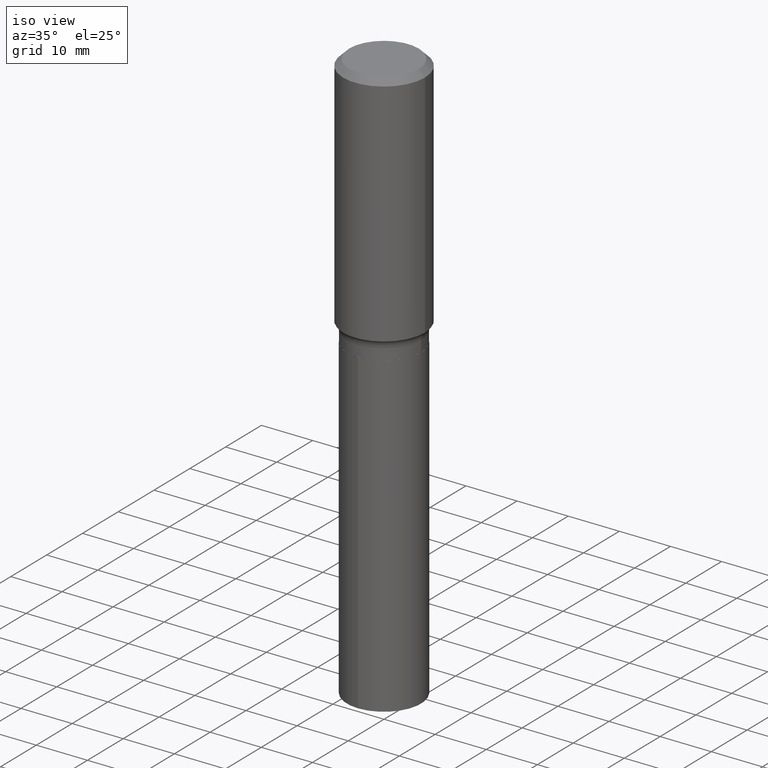
[diagram: clean part render]
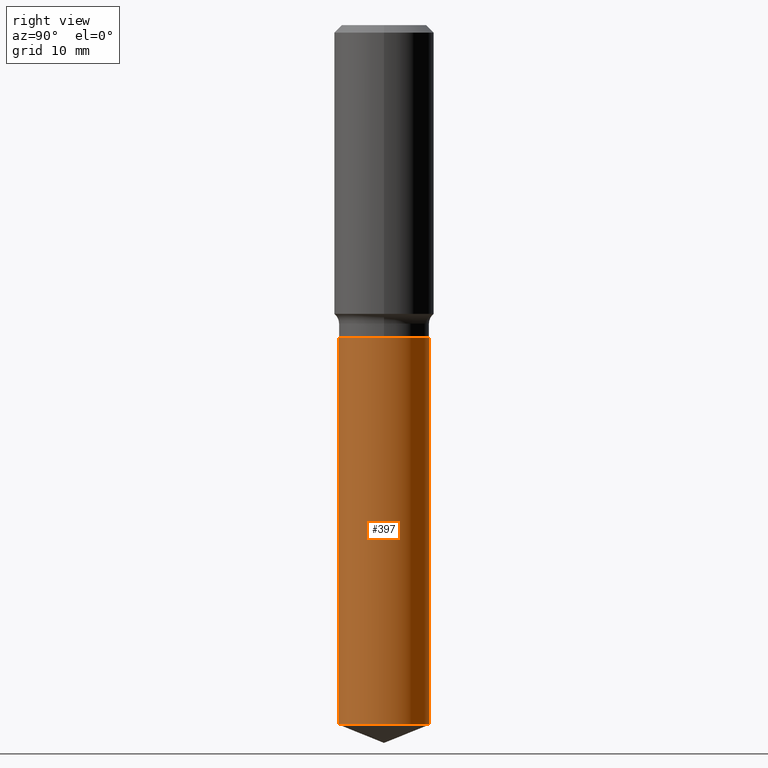
[diagram: tour spotlight — one face highlighted and labeled with its STEP entity id]
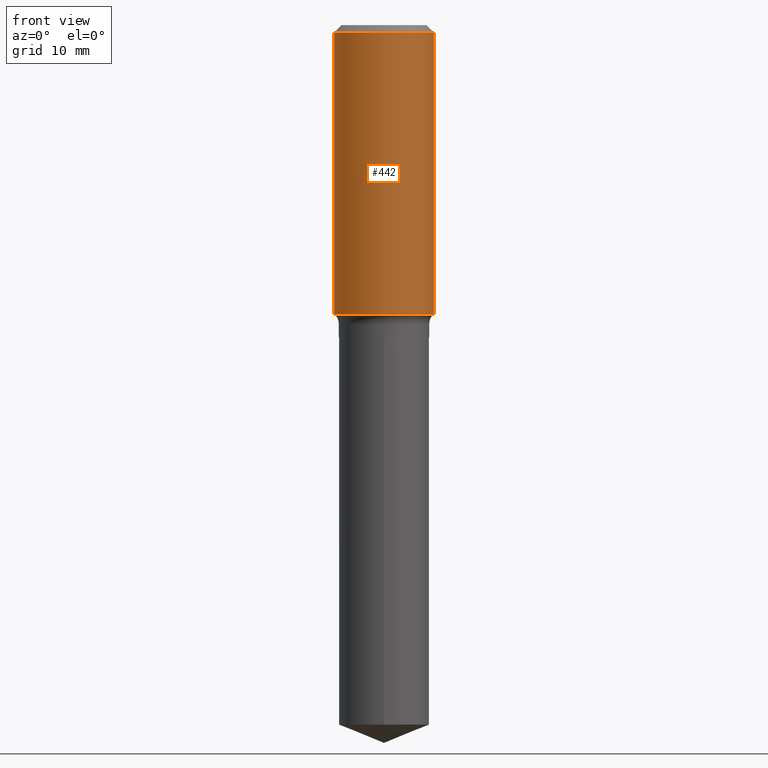
[diagram: tour spotlight — one face highlighted and labeled with its STEP entity id]
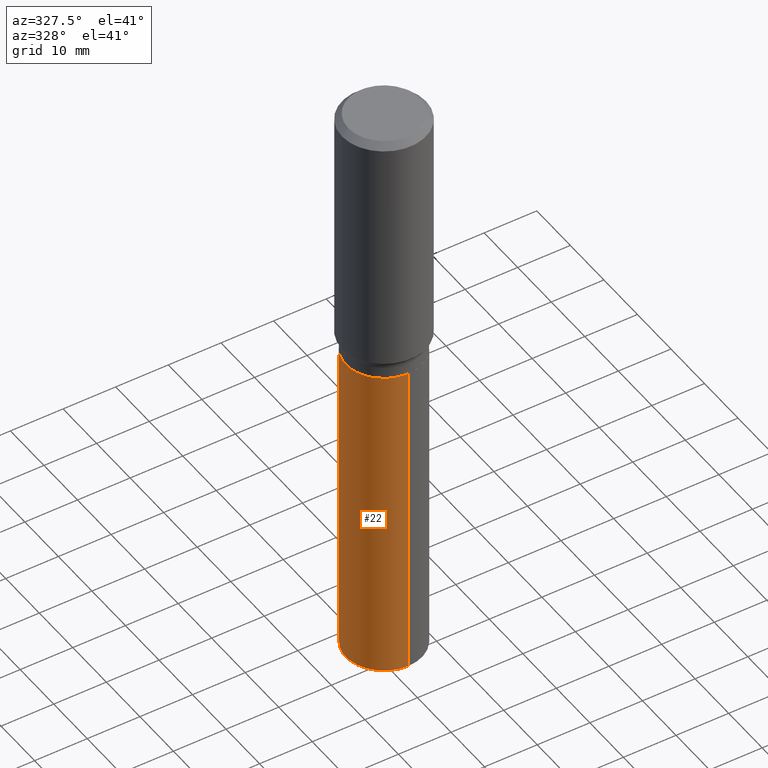
[diagram: tour spotlight — one face highlighted and labeled with its STEP entity id]
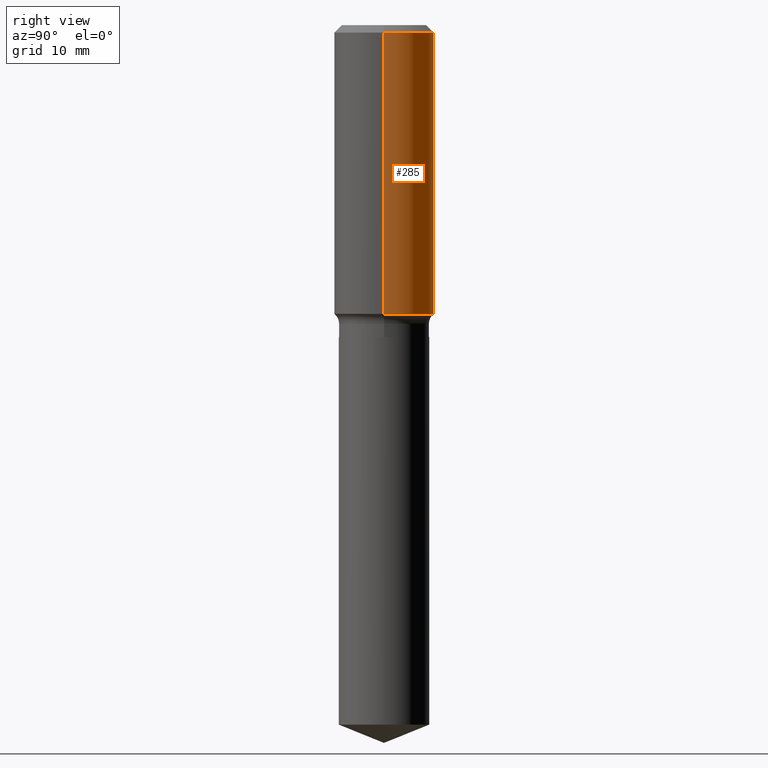
[diagram: tour spotlight — one face highlighted and labeled with its STEP entity id]
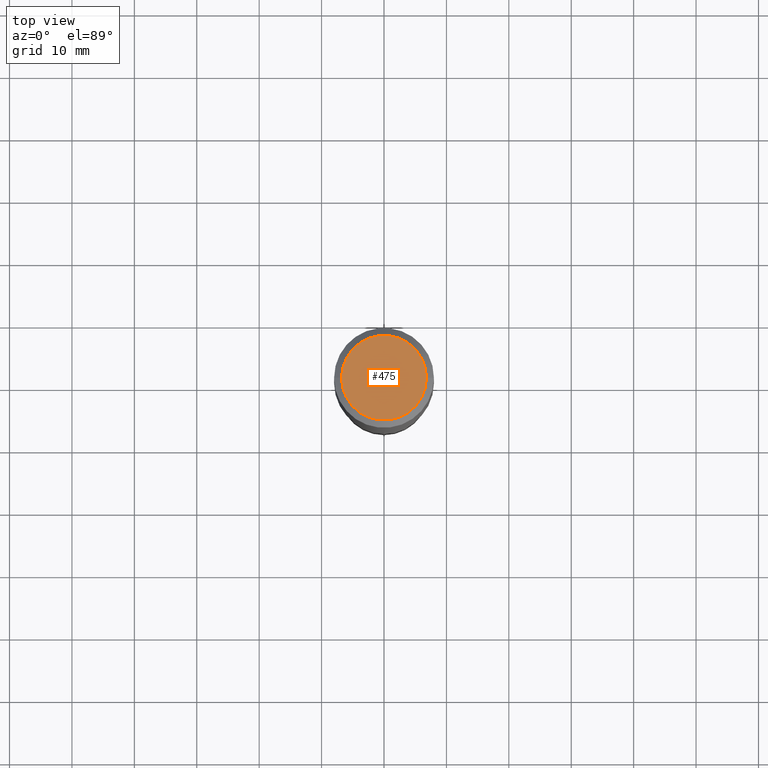
[diagram: tour spotlight — one face highlighted and labeled with its STEP entity id]
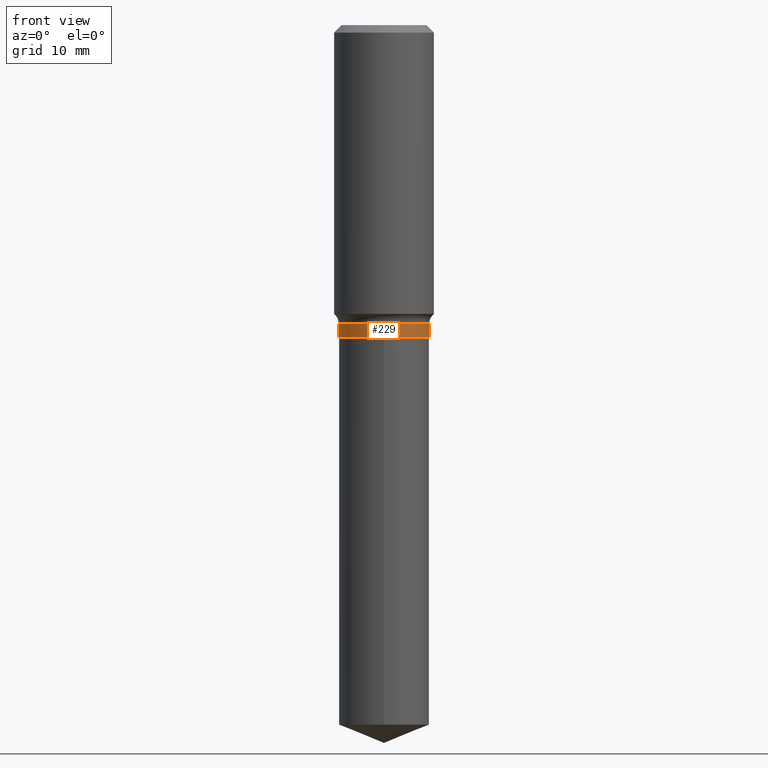
[diagram: tour spotlight — one face highlighted and labeled with its STEP entity id]
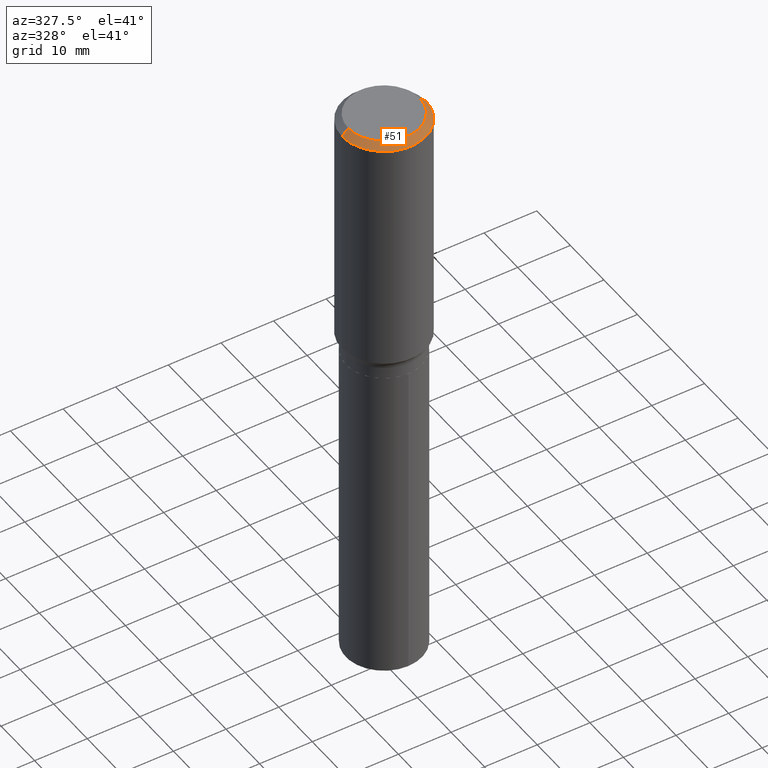
[diagram: tour spotlight — one face highlighted and labeled with its STEP entity id]
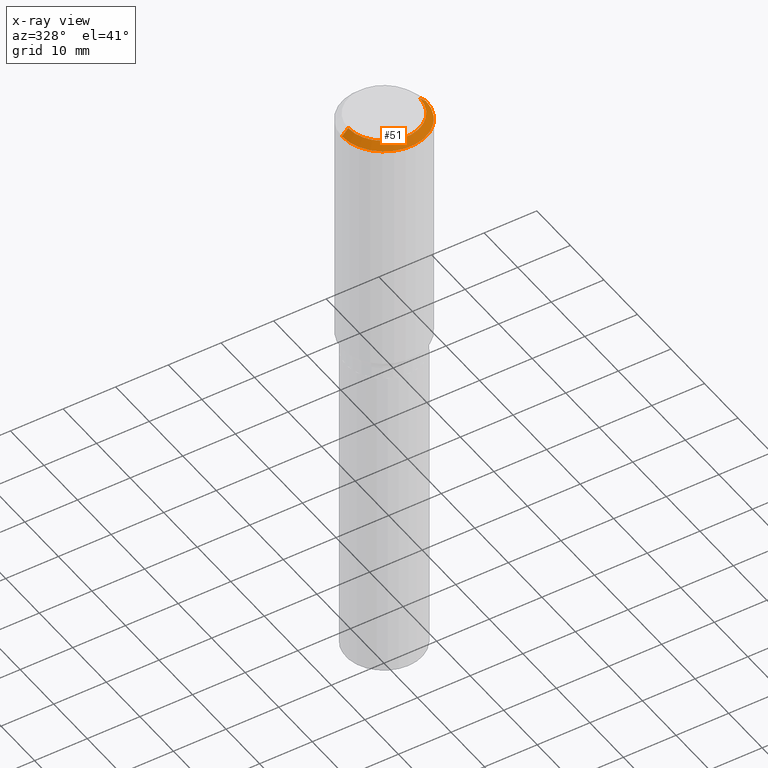
[diagram: x-ray of the same camera — body ghosted, this tour face saturated]
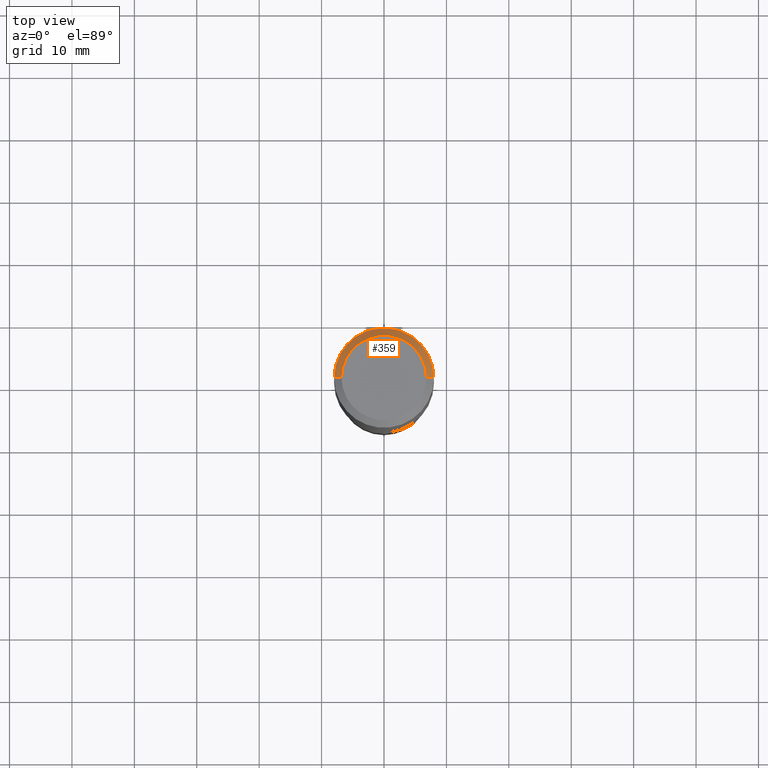
[diagram: tour spotlight — one face highlighted and labeled with its STEP entity id]
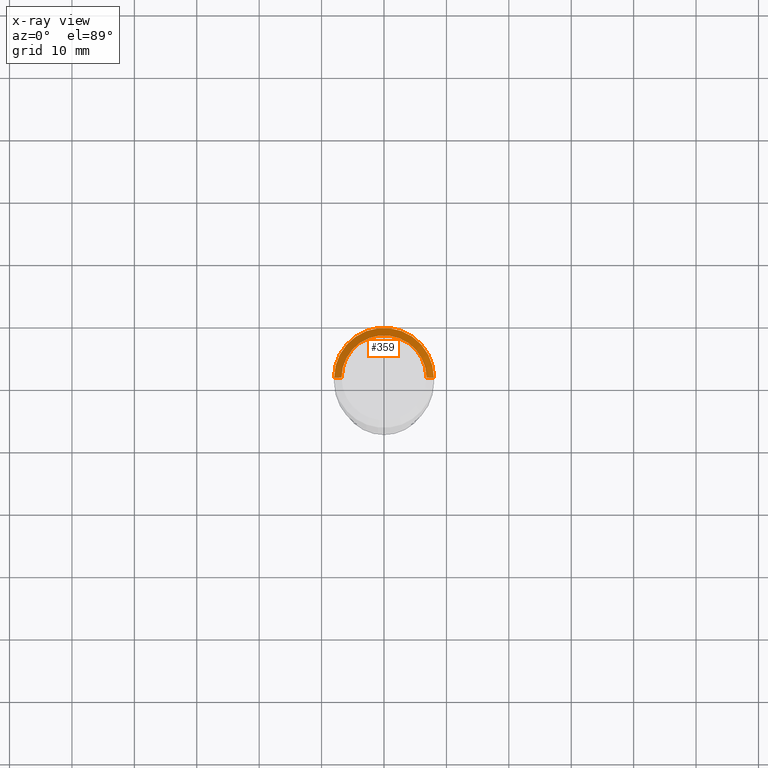
[diagram: x-ray of the same camera — body ghosted, this tour face saturated]
A machine part: a face-by-face anatomy tour. The part has 17 B-rep faces; the first image is the clean iso view, then the 8 largest visible faces are spotlighted one at a time (largest first), each with its STEP entity span.

Face 1 — right view, entity #397. In plain terms, the highlighted cylindrical surface (partial cylindrical patch) has radius 7.2504 mm, axis along (-0, 0, 1).
Definition (entity closure, byte-faithful):
#1 = LINE ( 'NONE', #32, #479 ) ;
#23 = AXIS2_PLACEMENT_3D ( 'NONE', #249, #398, #64 ) ;
#32 = CARTESIAN_POINT ( 'NONE',  ( -1.993286696345496046E-15, -0.2854500000000068094, -1.968499999999998362 ) ) ;
#39 = DIRECTION ( 'NONE',  ( -2.445526132303664263E-29, 3.491399244578613413E-15, 1.000000000000000000 ) ) ;
#43 = CIRCLE ( 'NONE', #23, 0.2854499999999999815 ) ;
#64 = DIRECTION ( 'NONE',  ( -6.982962677686265133E-15, -1.000000000000000000, 3.828128209723963046E-15 ) ) ;
#83 = DIRECTION ( 'NONE',  ( -2.445526132303664543E-29, 3.491399244578613413E-15, 1.000000000000000000 ) ) ;
#87 = AXIS2_PLACEMENT_3D ( 'NONE', #124, #121, #420 ) ;
#107 = CARTESIAN_POINT ( 'NONE',  ( -1.993286696345436093E-15, -0.2854500000000153026, -4.412270713835352964 ) ) ;
#108 = VERTEX_POINT ( 'NONE', #306 ) ;
#121 = DIRECTION ( 'NONE',  ( -2.445526132303664543E-29, 3.491399244578613413E-15, 1.000000000000000000 ) ) ;
#124 = CARTESIAN_POINT ( 'NONE',  ( 4.813905344975440153E-29, -6.872981015512730130E-15, -1.968499999999999472 ) ) ;
#141 = CARTESIAN_POINT ( 'NONE',  ( 2.028244239227312740E-15, 0.2854499999999844939, -4.412270713835355629 ) ) ;
#175 = EDGE_CURVE ( 'NONE', #228, #108, #309, .T. ) ;
#178 = LINE ( 'NONE', #247, #253 ) ;
#185 = EDGE_LOOP ( 'NONE', ( #457, #454, #412, #488 ) ) ;
#194 = FACE_OUTER_BOUND ( 'NONE', #185, .T. ) ;
#196 = CYLINDRICAL_SURFACE ( 'NONE', #372, 0.2854499999999999815 ) ;
#228 = VERTEX_POINT ( 'NONE', #399 ) ;
#247 = CARTESIAN_POINT ( 'NONE',  ( 2.028244239227253575E-15, 0.2854499999999930981, -1.968500000000000583 ) ) ;
#249 = CARTESIAN_POINT ( 'NONE',  ( 1.079021048701818205E-28, -1.540516023972082646E-14, -4.412270713835354741 ) ) ;
#253 = VECTOR ( 'NONE', #437, 39.37007874015748143 ) ;
#289 = VERTEX_POINT ( 'NONE', #107 ) ;
#306 = CARTESIAN_POINT ( 'NONE',  ( 2.028244239227313923E-15, 0.2854499999999931537, -1.968500000000000583 ) ) ;
#309 = CIRCLE ( 'NONE', #87, 0.2854499999999999815 ) ;
#323 = EDGE_CURVE ( 'NONE', #327, #108, #178, .T. ) ;
#327 = VERTEX_POINT ( 'NONE', #141 ) ;
#341 = EDGE_CURVE ( 'NONE', #289, #327, #43, .T. ) ;
#343 = CARTESIAN_POINT ( 'NONE',  ( 4.813905344975440153E-29, -6.872981015512730130E-15, -1.968499999999999472 ) ) ;
#351 = EDGE_CURVE ( 'NONE', #289, #228, #1, .T. ) ;
#372 = AXIS2_PLACEMENT_3D ( 'NONE', #343, #83, #452 ) ;
#397 = ADVANCED_FACE ( 'NONE', ( #194 ), #196, .T. ) ;
#398 = DIRECTION ( 'NONE',  ( -2.445526132303664543E-29, 3.491399244578613413E-15, 1.000000000000000000 ) ) ;
#399 = CARTESIAN_POINT ( 'NONE',  ( -1.993286696345496441E-15, -0.2854500000000068649, -1.968499999999998362 ) ) ;
#412 = ORIENTED_EDGE ( 'NONE', *, *, #175, .F. ) ;
#420 = DIRECTION ( 'NONE',  ( -6.982962677686265922E-15, -1.000000000000000000, 3.828128209723963046E-15 ) ) ;
#437 = DIRECTION ( 'NONE',  ( -2.445526132303664263E-29, 3.491399244578613413E-15, 1.000000000000000000 ) ) ;
#452 = DIRECTION ( 'NONE',  ( -6.982962677686265133E-15, -1.000000000000000000, 3.828128209723963046E-15 ) ) ;
#454 = ORIENTED_EDGE ( 'NONE', *, *, #323, .T. ) ;
#457 = ORIENTED_EDGE ( 'NONE', *, *, #341, .T. ) ;
#479 = VECTOR ( 'NONE', #39, 39.37007874015748143 ) ;
#488 = ORIENTED_EDGE ( 'NONE', *, *, #351, .F. ) ;

Face 2 — front view, entity #442. In plain terms, the highlighted cylindrical surface (partial cylindrical patch) has radius 7.9997 mm, axis along (-0, 0, 1).
Definition (entity closure, byte-faithful):
#6 = CARTESIAN_POINT ( 'NONE',  ( 1.155300600762019572E-30, -1.649463071502982046E-16, -0.04724250000000026345 ) ) ;
#10 = AXIS2_PLACEMENT_3D ( 'NONE', #37, #338, #409 ) ;
#17 = CARTESIAN_POINT ( 'NONE',  ( 0.3149500000000000632, -2.199284095337290265E-15, 1.535751875536930410E-29 ) ) ;
#30 = ORIENTED_EDGE ( 'NONE', *, *, #155, .F. ) ;
#31 = EDGE_CURVE ( 'NONE', #136, #207, #263, .T. ) ;
#37 = CARTESIAN_POINT ( 'NONE',  ( 4.455184291514019437E-29, -6.360822422099911684E-15, -1.821811948795201808 ) ) ;
#56 = AXIS2_PLACEMENT_3D ( 'NONE', #120, #149, #255 ) ;
#73 = CARTESIAN_POINT ( 'NONE',  ( 0.3149500000000001743, -8.560106517437202343E-15, -1.821811948795201808 ) ) ;
#95 = ORIENTED_EDGE ( 'NONE', *, *, #31, .F. ) ;
#103 = CIRCLE ( 'NONE', #10, 0.3149500000000001743 ) ;
#120 = CARTESIAN_POINT ( 'NONE',  ( 0.000000000000000000, 0.000000000000000000, 0.000000000000000000 ) ) ;
#136 = VERTEX_POINT ( 'NONE', #201 ) ;
#149 = DIRECTION ( 'NONE',  ( -2.445468806185136597E-29, 3.491481338843145583E-15, 1.000000000000000000 ) ) ;
#155 = EDGE_CURVE ( 'NONE', #207, #345, #334, .T. ) ;
#184 = EDGE_CURVE ( 'NONE', #136, #451, #103, .T. ) ;
#198 = DIRECTION ( 'NONE',  ( -2.445468806185136877E-29, 3.491481338843145188E-15, 1.000000000000000000 ) ) ;
#201 = CARTESIAN_POINT ( 'NONE',  ( -0.3149500000000001743, -4.122968075823474910E-15, -1.821811948795201808 ) ) ;
#204 = CARTESIAN_POINT ( 'NONE',  ( -0.3149500000000000632, 2.237854346276435985E-15, -1.549218606675782956E-29 ) ) ;
#207 = VERTEX_POINT ( 'NONE', #307 ) ;
#209 = LINE ( 'NONE', #17, #299 ) ;
#212 = CARTESIAN_POINT ( 'NONE',  ( 0.3149500000000000077, -2.364230402487588149E-15, -0.04724250000000026345 ) ) ;
#255 = DIRECTION ( 'NONE',  ( 1.000000000000000000, -6.982962677686266711E-15, 4.876176775795936353E-29 ) ) ;
#263 = LINE ( 'NONE', #204, #485 ) ;
#280 = DIRECTION ( 'NONE',  ( 1.000000000000000000, -6.982962677686266711E-15, 0.000000000000000000 ) ) ;
#297 = ORIENTED_EDGE ( 'NONE', *, *, #184, .T. ) ;
#299 = VECTOR ( 'NONE', #320, 39.37007874015748143 ) ;
#302 = EDGE_CURVE ( 'NONE', #451, #345, #209, .T. ) ;
#307 = CARTESIAN_POINT ( 'NONE',  ( -0.3149500000000000077, -1.025030018348668799E-15, -0.04724250000000026345 ) ) ;
#315 = ORIENTED_EDGE ( 'NONE', *, *, #302, .T. ) ;
#320 = DIRECTION ( 'NONE',  ( -2.445468806185136877E-29, 3.491481338843145188E-15, 1.000000000000000000 ) ) ;
#334 = CIRCLE ( 'NONE', #465, 0.3149500000000000077 ) ;
#338 = DIRECTION ( 'NONE',  ( -2.445468806185136597E-29, 3.491481338843145583E-15, 1.000000000000000000 ) ) ;
#345 = VERTEX_POINT ( 'NONE', #212 ) ;
#349 = DIRECTION ( 'NONE',  ( -2.445468806185136597E-29, 3.491481338843145583E-15, 1.000000000000000000 ) ) ;
#409 = DIRECTION ( 'NONE',  ( 1.000000000000000000, -6.982962677686265922E-15, 0.000000000000000000 ) ) ;
#442 = ADVANCED_FACE ( 'NONE', ( #456 ), #484, .T. ) ;
#451 = VERTEX_POINT ( 'NONE', #73 ) ;
#456 = FACE_OUTER_BOUND ( 'NONE', #472, .T. ) ;
#465 = AXIS2_PLACEMENT_3D ( 'NONE', #6, #349, #280 ) ;
#472 = EDGE_LOOP ( 'NONE', ( #95, #297, #315, #30 ) ) ;
#484 = CYLINDRICAL_SURFACE ( 'NONE', #56, 0.3149500000000000632 ) ;
#485 = VECTOR ( 'NONE', #198, 39.37007874015748143 ) ;

Face 3 — auxiliary view, entity #22. In plain terms, the highlighted cylindrical surface (partial cylindrical patch) has radius 7.2504 mm, axis along (-0, 0, 1).
Definition (entity closure, byte-faithful):
#1 = LINE ( 'NONE', #32, #479 ) ;
#16 = AXIS2_PLACEMENT_3D ( 'NONE', #158, #259, #226 ) ;
#22 = ADVANCED_FACE ( 'NONE', ( #40 ), #274, .T. ) ;
#32 = CARTESIAN_POINT ( 'NONE',  ( -1.993286696345496046E-15, -0.2854500000000068094, -1.968499999999998362 ) ) ;
#39 = DIRECTION ( 'NONE',  ( -2.445526132303664263E-29, 3.491399244578613413E-15, 1.000000000000000000 ) ) ;
#40 = FACE_OUTER_BOUND ( 'NONE', #82, .T. ) ;
#50 = DIRECTION ( 'NONE',  ( -2.445526132303664543E-29, 3.491399244578613413E-15, 1.000000000000000000 ) ) ;
#82 = EDGE_LOOP ( 'NONE', ( #231, #410, #364, #148 ) ) ;
#107 = CARTESIAN_POINT ( 'NONE',  ( -1.993286696345436093E-15, -0.2854500000000153026, -4.412270713835352964 ) ) ;
#108 = VERTEX_POINT ( 'NONE', #306 ) ;
#141 = CARTESIAN_POINT ( 'NONE',  ( 2.028244239227312740E-15, 0.2854499999999844939, -4.412270713835355629 ) ) ;
#148 = ORIENTED_EDGE ( 'NONE', *, *, #163, .F. ) ;
#158 = CARTESIAN_POINT ( 'NONE',  ( 4.813905344975440153E-29, -6.872981015512730130E-15, -1.968499999999999472 ) ) ;
#163 = EDGE_CURVE ( 'NONE', #108, #228, #395, .T. ) ;
#178 = LINE ( 'NONE', #247, #253 ) ;
#222 = DIRECTION ( 'NONE',  ( -6.982962677686265133E-15, -1.000000000000000000, 3.828128209723963046E-15 ) ) ;
#226 = DIRECTION ( 'NONE',  ( -6.982962677686265922E-15, -1.000000000000000000, 3.828128209723963046E-15 ) ) ;
#228 = VERTEX_POINT ( 'NONE', #399 ) ;
#231 = ORIENTED_EDGE ( 'NONE', *, *, #323, .F. ) ;
#247 = CARTESIAN_POINT ( 'NONE',  ( 2.028244239227253575E-15, 0.2854499999999930981, -1.968500000000000583 ) ) ;
#253 = VECTOR ( 'NONE', #437, 39.37007874015748143 ) ;
#259 = DIRECTION ( 'NONE',  ( -2.445526132303664543E-29, 3.491399244578613413E-15, 1.000000000000000000 ) ) ;
#271 = DIRECTION ( 'NONE',  ( -6.982962677686265133E-15, -1.000000000000000000, 3.828128209723963046E-15 ) ) ;
#274 = CYLINDRICAL_SURFACE ( 'NONE', #438, 0.2854499999999999815 ) ;
#289 = VERTEX_POINT ( 'NONE', #107 ) ;
#303 = DIRECTION ( 'NONE',  ( -2.445526132303664543E-29, 3.491399244578613413E-15, 1.000000000000000000 ) ) ;
#306 = CARTESIAN_POINT ( 'NONE',  ( 2.028244239227313923E-15, 0.2854499999999931537, -1.968500000000000583 ) ) ;
#313 = CARTESIAN_POINT ( 'NONE',  ( 4.813905344975440153E-29, -6.872981015512730130E-15, -1.968499999999999472 ) ) ;
#323 = EDGE_CURVE ( 'NONE', #327, #108, #178, .T. ) ;
#327 = VERTEX_POINT ( 'NONE', #141 ) ;
#351 = EDGE_CURVE ( 'NONE', #289, #228, #1, .T. ) ;
#362 = EDGE_CURVE ( 'NONE', #327, #289, #403, .T. ) ;
#364 = ORIENTED_EDGE ( 'NONE', *, *, #351, .T. ) ;
#395 = CIRCLE ( 'NONE', #16, 0.2854499999999999815 ) ;
#399 = CARTESIAN_POINT ( 'NONE',  ( -1.993286696345496441E-15, -0.2854500000000068649, -1.968499999999998362 ) ) ;
#403 = CIRCLE ( 'NONE', #434, 0.2854499999999999815 ) ;
#410 = ORIENTED_EDGE ( 'NONE', *, *, #362, .T. ) ;
#411 = CARTESIAN_POINT ( 'NONE',  ( 1.079021048701818205E-28, -1.540516023972082646E-14, -4.412270713835354741 ) ) ;
#434 = AXIS2_PLACEMENT_3D ( 'NONE', #411, #303, #222 ) ;
#437 = DIRECTION ( 'NONE',  ( -2.445526132303664263E-29, 3.491399244578613413E-15, 1.000000000000000000 ) ) ;
#438 = AXIS2_PLACEMENT_3D ( 'NONE', #313, #50, #271 ) ;
#479 = VECTOR ( 'NONE', #39, 39.37007874015748143 ) ;

Face 4 — right view, entity #285. In plain terms, the highlighted cylindrical surface (partial cylindrical patch) has radius 7.9997 mm, axis along (-0, 0, 1).
Definition (entity closure, byte-faithful):
#3 = CARTESIAN_POINT ( 'NONE',  ( 4.455184291514019437E-29, -6.360822422099911684E-15, -1.821811948795201808 ) ) ;
#17 = CARTESIAN_POINT ( 'NONE',  ( 0.3149500000000000632, -2.199284095337290265E-15, 1.535751875536930410E-29 ) ) ;
#26 = DIRECTION ( 'NONE',  ( -2.445468806185136597E-29, 3.491481338843145583E-15, 1.000000000000000000 ) ) ;
#31 = EDGE_CURVE ( 'NONE', #136, #207, #263, .T. ) ;
#47 = DIRECTION ( 'NONE',  ( 1.000000000000000000, -6.982962677686265922E-15, 0.000000000000000000 ) ) ;
#61 = CIRCLE ( 'NONE', #270, 0.3149500000000001743 ) ;
#69 = ORIENTED_EDGE ( 'NONE', *, *, #84, .T. ) ;
#73 = CARTESIAN_POINT ( 'NONE',  ( 0.3149500000000001743, -8.560106517437202343E-15, -1.821811948795201808 ) ) ;
#79 = CIRCLE ( 'NONE', #415, 0.3149500000000000077 ) ;
#84 = EDGE_CURVE ( 'NONE', #451, #136, #61, .T. ) ;
#116 = CARTESIAN_POINT ( 'NONE',  ( 1.155300600762019572E-30, -1.649463071502982046E-16, -0.04724250000000026345 ) ) ;
#118 = EDGE_LOOP ( 'NONE', ( #69, #242, #145, #254 ) ) ;
#136 = VERTEX_POINT ( 'NONE', #201 ) ;
#145 = ORIENTED_EDGE ( 'NONE', *, *, #450, .F. ) ;
#180 = FACE_OUTER_BOUND ( 'NONE', #118, .T. ) ;
#198 = DIRECTION ( 'NONE',  ( -2.445468806185136877E-29, 3.491481338843145188E-15, 1.000000000000000000 ) ) ;
#201 = CARTESIAN_POINT ( 'NONE',  ( -0.3149500000000001743, -4.122968075823474910E-15, -1.821811948795201808 ) ) ;
#204 = CARTESIAN_POINT ( 'NONE',  ( -0.3149500000000000632, 2.237854346276435985E-15, -1.549218606675782956E-29 ) ) ;
#207 = VERTEX_POINT ( 'NONE', #307 ) ;
#209 = LINE ( 'NONE', #17, #299 ) ;
#212 = CARTESIAN_POINT ( 'NONE',  ( 0.3149500000000000077, -2.364230402487588149E-15, -0.04724250000000026345 ) ) ;
#220 = DIRECTION ( 'NONE',  ( -2.445468806185136597E-29, 3.491481338843145583E-15, 1.000000000000000000 ) ) ;
#242 = ORIENTED_EDGE ( 'NONE', *, *, #31, .T. ) ;
#254 = ORIENTED_EDGE ( 'NONE', *, *, #302, .F. ) ;
#263 = LINE ( 'NONE', #204, #485 ) ;
#270 = AXIS2_PLACEMENT_3D ( 'NONE', #3, #470, #47 ) ;
#281 = CYLINDRICAL_SURFACE ( 'NONE', #453, 0.3149500000000000632 ) ;
#285 = ADVANCED_FACE ( 'NONE', ( #180 ), #281, .T. ) ;
#288 = CARTESIAN_POINT ( 'NONE',  ( 0.000000000000000000, 0.000000000000000000, 0.000000000000000000 ) ) ;
#299 = VECTOR ( 'NONE', #320, 39.37007874015748143 ) ;
#302 = EDGE_CURVE ( 'NONE', #451, #345, #209, .T. ) ;
#307 = CARTESIAN_POINT ( 'NONE',  ( -0.3149500000000000077, -1.025030018348668799E-15, -0.04724250000000026345 ) ) ;
#320 = DIRECTION ( 'NONE',  ( -2.445468806185136877E-29, 3.491481338843145188E-15, 1.000000000000000000 ) ) ;
#345 = VERTEX_POINT ( 'NONE', #212 ) ;
#415 = AXIS2_PLACEMENT_3D ( 'NONE', #116, #220, #419 ) ;
#419 = DIRECTION ( 'NONE',  ( 1.000000000000000000, -6.982962677686266711E-15, 0.000000000000000000 ) ) ;
#450 = EDGE_CURVE ( 'NONE', #345, #207, #79, .T. ) ;
#451 = VERTEX_POINT ( 'NONE', #73 ) ;
#453 = AXIS2_PLACEMENT_3D ( 'NONE', #288, #26, #480 ) ;
#470 = DIRECTION ( 'NONE',  ( -2.445468806185136597E-29, 3.491481338843145583E-15, 1.000000000000000000 ) ) ;
#480 = DIRECTION ( 'NONE',  ( 1.000000000000000000, -6.982962677686266711E-15, 4.876176775795936353E-29 ) ) ;
#485 = VECTOR ( 'NONE', #198, 39.37007874015748143 ) ;

Face 5 — top view, entity #475. In plain terms, the highlighted planar face has unit normal (0, -0, -1).
Definition (entity closure, byte-faithful):
#29 = CARTESIAN_POINT ( 'NONE',  ( -1.001697619218022568E-46, 1.430158722866391086E-32, 4.096137381448112218E-18 ) ) ;
#34 = AXIS2_PLACEMENT_3D ( 'NONE', #378, #41, #367 ) ;
#41 = DIRECTION ( 'NONE',  ( 2.438088387897960049E-29, -3.491481338843145188E-15, -1.000000000000000000 ) ) ;
#45 = CIRCLE ( 'NONE', #177, 0.2677074999999999871 ) ;
#72 = VERTEX_POINT ( 'NONE', #492 ) ;
#177 = AXIS2_PLACEMENT_3D ( 'NONE', #29, #186, #331 ) ;
#182 = CARTESIAN_POINT ( 'NONE',  ( -1.001697619218022568E-46, 1.430158722866391086E-32, 4.096137381448112218E-18 ) ) ;
#186 = DIRECTION ( 'NONE',  ( -2.445468806185136597E-29, 3.491481338843145583E-15, 1.000000000000000000 ) ) ;
#187 = EDGE_LOOP ( 'NONE', ( #446, #336 ) ) ;
#232 = PLANE ( 'NONE',  #34 ) ;
#262 = FACE_OUTER_BOUND ( 'NONE', #187, .T. ) ;
#273 = EDGE_CURVE ( 'NONE', #356, #72, #444, .T. ) ;
#324 = AXIS2_PLACEMENT_3D ( 'NONE', #182, #440, #326 ) ;
#326 = DIRECTION ( 'NONE',  ( 1.000000000000000000, -6.982962677686267499E-15, 4.876236838442819371E-29 ) ) ;
#331 = DIRECTION ( 'NONE',  ( 1.000000000000000000, -6.982962677686267499E-15, 4.876236838442819371E-29 ) ) ;
#336 = ORIENTED_EDGE ( 'NONE', *, *, #481, .T. ) ;
#356 = VERTEX_POINT ( 'NONE', #459 ) ;
#367 = DIRECTION ( 'NONE',  ( -1.000000000000000000, 6.982962677686265922E-15, -4.876176775795935793E-29 ) ) ;
#378 = CARTESIAN_POINT ( 'NONE',  ( -5.008488096090112840E-47, 7.150793614331955432E-33, 2.048068690724056109E-18 ) ) ;
#440 = DIRECTION ( 'NONE',  ( -2.445468806185136597E-29, 3.491481338843145583E-15, 1.000000000000000000 ) ) ;
#444 = CIRCLE ( 'NONE', #324, 0.2677074999999999871 ) ;
#446 = ORIENTED_EDGE ( 'NONE', *, *, #273, .T. ) ;
#459 = CARTESIAN_POINT ( 'NONE',  ( -0.2677074999999999871, 1.951864634611843833E-15, 4.096137381434750116E-18 ) ) ;
#475 = ADVANCED_FACE ( 'NONE', ( #262 ), #232, .F. ) ;
#481 = EDGE_CURVE ( 'NONE', #72, #356, #45, .T. ) ;
#492 = CARTESIAN_POINT ( 'NONE',  ( 0.2677074999999999871, -2.081133459643432233E-15, 4.096137381461924987E-18 ) ) ;

Face 6 — front view, entity #229. In plain terms, the highlighted cylindrical surface (partial cylindrical patch) has radius 7.2504 mm, axis along (-0, 0, 1).
Definition (entity closure, byte-faithful):
#36 = CARTESIAN_POINT ( 'NONE',  ( 0.2854499999999999815, -1.993286696345544561E-15, 1.391904660650949682E-29 ) ) ;
#57 = VERTEX_POINT ( 'NONE', #425 ) ;
#59 = CARTESIAN_POINT ( 'NONE',  ( 4.812682610572347912E-29, -6.871235274843308626E-15, -1.967999999999999527 ) ) ;
#60 = DIRECTION ( 'NONE',  ( -2.445468806185136597E-29, 3.491481338843145583E-15, 1.000000000000000000 ) ) ;
#76 = CARTESIAN_POINT ( 'NONE',  ( -0.2854500000000000370, -4.694428504648327695E-15, -1.882899999999999796 ) ) ;
#77 = AXIS2_PLACEMENT_3D ( 'NONE', #59, #60, #346 ) ;
#88 = VERTEX_POINT ( 'NONE', #261 ) ;
#99 = DIRECTION ( 'NONE',  ( -2.445468806185136597E-29, 3.491481338843145583E-15, 1.000000000000000000 ) ) ;
#100 = EDGE_CURVE ( 'NONE', #57, #441, #160, .T. ) ;
#110 = AXIS2_PLACEMENT_3D ( 'NONE', #433, #99, #246 ) ;
#111 = ORIENTED_EDGE ( 'NONE', *, *, #100, .F. ) ;
#153 = ORIENTED_EDGE ( 'NONE', *, *, #218, .T. ) ;
#160 = LINE ( 'NONE', #233, #344 ) ;
#168 = EDGE_LOOP ( 'NONE', ( #111, #153, #295, #183 ) ) ;
#183 = ORIENTED_EDGE ( 'NONE', *, *, #210, .F. ) ;
#210 = EDGE_CURVE ( 'NONE', #441, #287, #282, .T. ) ;
#213 = CYLINDRICAL_SURFACE ( 'NONE', #478, 0.2854499999999999815 ) ;
#218 = EDGE_CURVE ( 'NONE', #57, #88, #290, .T. ) ;
#225 = LINE ( 'NONE', #36, #325 ) ;
#229 = ADVANCED_FACE ( 'NONE', ( #322 ), #213, .T. ) ;
#233 = CARTESIAN_POINT ( 'NONE',  ( -0.2854499999999999815, 2.028244239227205849E-15, -1.404110021513262784E-29 ) ) ;
#246 = DIRECTION ( 'NONE',  ( 1.000000000000000000, -6.982962677686265922E-15, 0.000000000000000000 ) ) ;
#251 = DIRECTION ( 'NONE',  ( 1.000000000000000000, -6.982962677686265922E-15, 4.876176775795935232E-29 ) ) ;
#261 = CARTESIAN_POINT ( 'NONE',  ( 0.2854499999999999815, -8.864521971188853976E-15, -1.967999999999999527 ) ) ;
#282 = CIRCLE ( 'NONE', #110, 0.2854499999999999815 ) ;
#287 = VERTEX_POINT ( 'NONE', #365 ) ;
#290 = CIRCLE ( 'NONE', #77, 0.2854499999999999815 ) ;
#295 = ORIENTED_EDGE ( 'NONE', *, *, #392, .T. ) ;
#322 = FACE_OUTER_BOUND ( 'NONE', #168, .T. ) ;
#325 = VECTOR ( 'NONE', #447, 39.37007874015748143 ) ;
#344 = VECTOR ( 'NONE', #421, 39.37007874015748143 ) ;
#346 = DIRECTION ( 'NONE',  ( 1.000000000000000000, -6.982962677686269077E-15, 0.000000000000000000 ) ) ;
#363 = DIRECTION ( 'NONE',  ( -2.445468806185136597E-29, 3.491481338843145583E-15, 1.000000000000000000 ) ) ;
#365 = CARTESIAN_POINT ( 'NONE',  ( 0.2854499999999999815, -8.567396909253302236E-15, -1.882899999999999796 ) ) ;
#392 = EDGE_CURVE ( 'NONE', #88, #287, #225, .T. ) ;
#401 = CARTESIAN_POINT ( 'NONE',  ( 0.000000000000000000, 0.000000000000000000, 0.000000000000000000 ) ) ;
#421 = DIRECTION ( 'NONE',  ( -2.445468806185136877E-29, 3.491481338843145188E-15, 1.000000000000000000 ) ) ;
#425 = CARTESIAN_POINT ( 'NONE',  ( -0.2854499999999999815, -4.694428504648327695E-15, -1.967999999999999527 ) ) ;
#433 = CARTESIAN_POINT ( 'NONE',  ( 4.604573215165993234E-29, -6.574110212907758463E-15, -1.882899999999999796 ) ) ;
#441 = VERTEX_POINT ( 'NONE', #76 ) ;
#447 = DIRECTION ( 'NONE',  ( -2.445468806185136877E-29, 3.491481338843145188E-15, 1.000000000000000000 ) ) ;
#478 = AXIS2_PLACEMENT_3D ( 'NONE', #401, #363, #251 ) ;

Face 7 — auxiliary view, entity #51. An x-ray twin of the same camera follows (body ghosted, this face saturated) — the face is partly hidden behind the body. In plain terms, the highlighted conical surface has half-angle 45 deg.
Definition (entity closure, byte-faithful):
#6 = CARTESIAN_POINT ( 'NONE',  ( 1.155300600762019572E-30, -1.649463071502982046E-16, -0.04724250000000026345 ) ) ;
#18 = VECTOR ( 'NONE', #188, 39.37007874015748854 ) ;
#51 = ADVANCED_FACE ( 'NONE', ( #377 ), #68, .T. ) ;
#68 = CONICAL_SURFACE ( 'NONE', #243, 0.3149500000000000077, 0.7853981633974456145 ) ;
#72 = VERTEX_POINT ( 'NONE', #492 ) ;
#93 = DIRECTION ( 'NONE',  ( -1.000000000000000000, 6.982962677686266711E-15, 0.000000000000000000 ) ) ;
#115 = EDGE_LOOP ( 'NONE', ( #467, #339, #311, #483 ) ) ;
#119 = EDGE_CURVE ( 'NONE', #356, #207, #423, .T. ) ;
#125 = DIRECTION ( 'NONE',  ( 2.445468806185136597E-29, -3.491481338843145583E-15, -1.000000000000000000 ) ) ;
#155 = EDGE_CURVE ( 'NONE', #207, #345, #334, .T. ) ;
#162 = CARTESIAN_POINT ( 'NONE',  ( 1.155300600762019572E-30, -1.649463071502982046E-16, -0.04724250000000026345 ) ) ;
#182 = CARTESIAN_POINT ( 'NONE',  ( -1.001697619218022568E-46, 1.430158722866391086E-32, 4.096137381448112218E-18 ) ) ;
#188 = DIRECTION ( 'NONE',  ( 0.7071067811865455743, -7.319954787623248157E-15, -0.7071067811865493491 ) ) ;
#207 = VERTEX_POINT ( 'NONE', #307 ) ;
#211 = VECTOR ( 'NONE', #266, 39.37007874015748854 ) ;
#212 = CARTESIAN_POINT ( 'NONE',  ( 0.3149500000000000077, -2.364230402487588149E-15, -0.04724250000000026345 ) ) ;
#243 = AXIS2_PLACEMENT_3D ( 'NONE', #162, #125, #93 ) ;
#266 = DIRECTION ( 'NONE',  ( -0.7071067811865455743, 2.468850131082236945E-15, -0.7071067811865493491 ) ) ;
#273 = EDGE_CURVE ( 'NONE', #356, #72, #444, .T. ) ;
#280 = DIRECTION ( 'NONE',  ( 1.000000000000000000, -6.982962677686266711E-15, 0.000000000000000000 ) ) ;
#307 = CARTESIAN_POINT ( 'NONE',  ( -0.3149500000000000077, -1.025030018348668799E-15, -0.04724250000000026345 ) ) ;
#311 = ORIENTED_EDGE ( 'NONE', *, *, #119, .T. ) ;
#324 = AXIS2_PLACEMENT_3D ( 'NONE', #182, #440, #326 ) ;
#326 = DIRECTION ( 'NONE',  ( 1.000000000000000000, -6.982962677686267499E-15, 4.876236838442819371E-29 ) ) ;
#334 = CIRCLE ( 'NONE', #465, 0.3149500000000000077 ) ;
#339 = ORIENTED_EDGE ( 'NONE', *, *, #273, .F. ) ;
#345 = VERTEX_POINT ( 'NONE', #212 ) ;
#347 = CARTESIAN_POINT ( 'NONE',  ( -0.3149500000000000077, 2.034337788186991592E-15, -0.04724250000000026345 ) ) ;
#349 = DIRECTION ( 'NONE',  ( -2.445468806185136597E-29, 3.491481338843145583E-15, 1.000000000000000000 ) ) ;
#356 = VERTEX_POINT ( 'NONE', #459 ) ;
#369 = CARTESIAN_POINT ( 'NONE',  ( 0.3149500000000000077, -2.325660151548442036E-15, -0.04724250000000026345 ) ) ;
#377 = FACE_OUTER_BOUND ( 'NONE', #115, .T. ) ;
#408 = LINE ( 'NONE', #369, #18 ) ;
#423 = LINE ( 'NONE', #347, #211 ) ;
#440 = DIRECTION ( 'NONE',  ( -2.445468806185136597E-29, 3.491481338843145583E-15, 1.000000000000000000 ) ) ;
#444 = CIRCLE ( 'NONE', #324, 0.2677074999999999871 ) ;
#459 = CARTESIAN_POINT ( 'NONE',  ( -0.2677074999999999871, 1.951864634611843833E-15, 4.096137381434750116E-18 ) ) ;
#465 = AXIS2_PLACEMENT_3D ( 'NONE', #6, #349, #280 ) ;
#467 = ORIENTED_EDGE ( 'NONE', *, *, #487, .F. ) ;
#483 = ORIENTED_EDGE ( 'NONE', *, *, #155, .T. ) ;
#487 = EDGE_CURVE ( 'NONE', #72, #345, #408, .T. ) ;
#492 = CARTESIAN_POINT ( 'NONE',  ( 0.2677074999999999871, -2.081133459643432233E-15, 4.096137381461924987E-18 ) ) ;

Face 8 — top view, entity #359. An x-ray twin of the same camera follows (body ghosted, this face saturated) — the face is partly hidden behind the body. In plain terms, the highlighted conical surface has half-angle 45 deg.
Definition (entity closure, byte-faithful):
#18 = VECTOR ( 'NONE', #188, 39.37007874015748854 ) ;
#29 = CARTESIAN_POINT ( 'NONE',  ( -1.001697619218022568E-46, 1.430158722866391086E-32, 4.096137381448112218E-18 ) ) ;
#45 = CIRCLE ( 'NONE', #177, 0.2677074999999999871 ) ;
#66 = ORIENTED_EDGE ( 'NONE', *, *, #487, .T. ) ;
#72 = VERTEX_POINT ( 'NONE', #492 ) ;
#75 = EDGE_LOOP ( 'NONE', ( #193, #66, #405, #370 ) ) ;
#79 = CIRCLE ( 'NONE', #415, 0.3149500000000000077 ) ;
#116 = CARTESIAN_POINT ( 'NONE',  ( 1.155300600762019572E-30, -1.649463071502982046E-16, -0.04724250000000026345 ) ) ;
#119 = EDGE_CURVE ( 'NONE', #356, #207, #423, .T. ) ;
#161 = DIRECTION ( 'NONE',  ( 2.445468806185136597E-29, -3.491481338843145583E-15, -1.000000000000000000 ) ) ;
#177 = AXIS2_PLACEMENT_3D ( 'NONE', #29, #186, #331 ) ;
#186 = DIRECTION ( 'NONE',  ( -2.445468806185136597E-29, 3.491481338843145583E-15, 1.000000000000000000 ) ) ;
#188 = DIRECTION ( 'NONE',  ( 0.7071067811865455743, -7.319954787623248157E-15, -0.7071067811865493491 ) ) ;
#189 = CONICAL_SURFACE ( 'NONE', #352, 0.3149500000000000077, 0.7853981633974456145 ) ;
#193 = ORIENTED_EDGE ( 'NONE', *, *, #481, .F. ) ;
#207 = VERTEX_POINT ( 'NONE', #307 ) ;
#211 = VECTOR ( 'NONE', #266, 39.37007874015748854 ) ;
#212 = CARTESIAN_POINT ( 'NONE',  ( 0.3149500000000000077, -2.364230402487588149E-15, -0.04724250000000026345 ) ) ;
#220 = DIRECTION ( 'NONE',  ( -2.445468806185136597E-29, 3.491481338843145583E-15, 1.000000000000000000 ) ) ;
#258 = FACE_OUTER_BOUND ( 'NONE', #75, .T. ) ;
#266 = DIRECTION ( 'NONE',  ( -0.7071067811865455743, 2.468850131082236945E-15, -0.7071067811865493491 ) ) ;
#307 = CARTESIAN_POINT ( 'NONE',  ( -0.3149500000000000077, -1.025030018348668799E-15, -0.04724250000000026345 ) ) ;
#331 = DIRECTION ( 'NONE',  ( 1.000000000000000000, -6.982962677686267499E-15, 4.876236838442819371E-29 ) ) ;
#345 = VERTEX_POINT ( 'NONE', #212 ) ;
#347 = CARTESIAN_POINT ( 'NONE',  ( -0.3149500000000000077, 2.034337788186991592E-15, -0.04724250000000026345 ) ) ;
#352 = AXIS2_PLACEMENT_3D ( 'NONE', #373, #161, #416 ) ;
#356 = VERTEX_POINT ( 'NONE', #459 ) ;
#359 = ADVANCED_FACE ( 'NONE', ( #258 ), #189, .T. ) ;
#369 = CARTESIAN_POINT ( 'NONE',  ( 0.3149500000000000077, -2.325660151548442036E-15, -0.04724250000000026345 ) ) ;
#370 = ORIENTED_EDGE ( 'NONE', *, *, #119, .F. ) ;
#373 = CARTESIAN_POINT ( 'NONE',  ( 1.155300600762019572E-30, -1.649463071502982046E-16, -0.04724250000000026345 ) ) ;
#405 = ORIENTED_EDGE ( 'NONE', *, *, #450, .T. ) ;
#408 = LINE ( 'NONE', #369, #18 ) ;
#415 = AXIS2_PLACEMENT_3D ( 'NONE', #116, #220, #419 ) ;
#416 = DIRECTION ( 'NONE',  ( -1.000000000000000000, 6.982962677686266711E-15, 0.000000000000000000 ) ) ;
#419 = DIRECTION ( 'NONE',  ( 1.000000000000000000, -6.982962677686266711E-15, 0.000000000000000000 ) ) ;
#423 = LINE ( 'NONE', #347, #211 ) ;
#450 = EDGE_CURVE ( 'NONE', #345, #207, #79, .T. ) ;
#459 = CARTESIAN_POINT ( 'NONE',  ( -0.2677074999999999871, 1.951864634611843833E-15, 4.096137381434750116E-18 ) ) ;
#481 = EDGE_CURVE ( 'NONE', #72, #356, #45, .T. ) ;
#487 = EDGE_CURVE ( 'NONE', #72, #345, #408, .T. ) ;
#492 = CARTESIAN_POINT ( 'NONE',  ( 0.2677074999999999871, -2.081133459643432233E-15, 4.096137381461924987E-18 ) ) ;